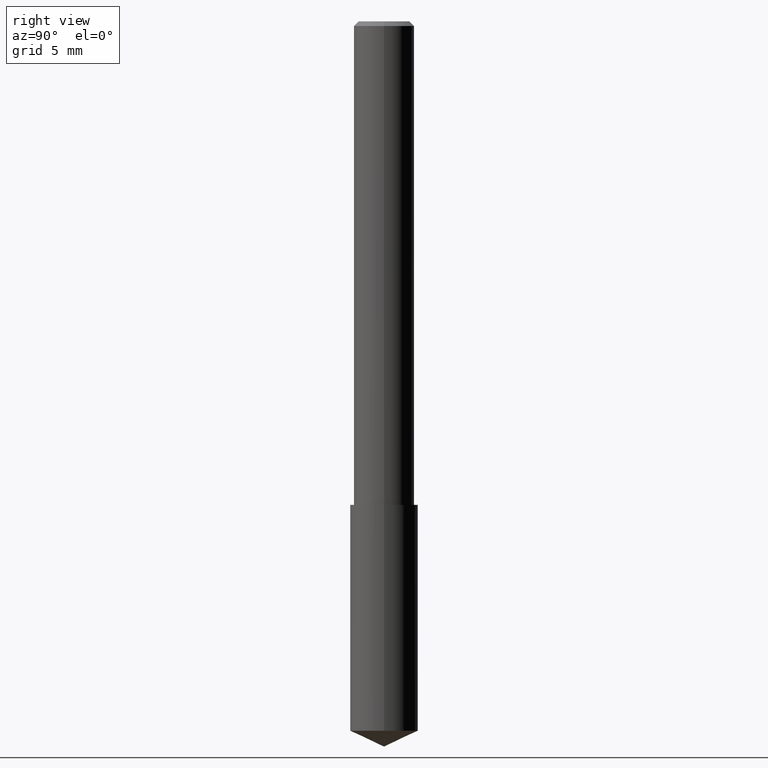
[diagram: clean part render]
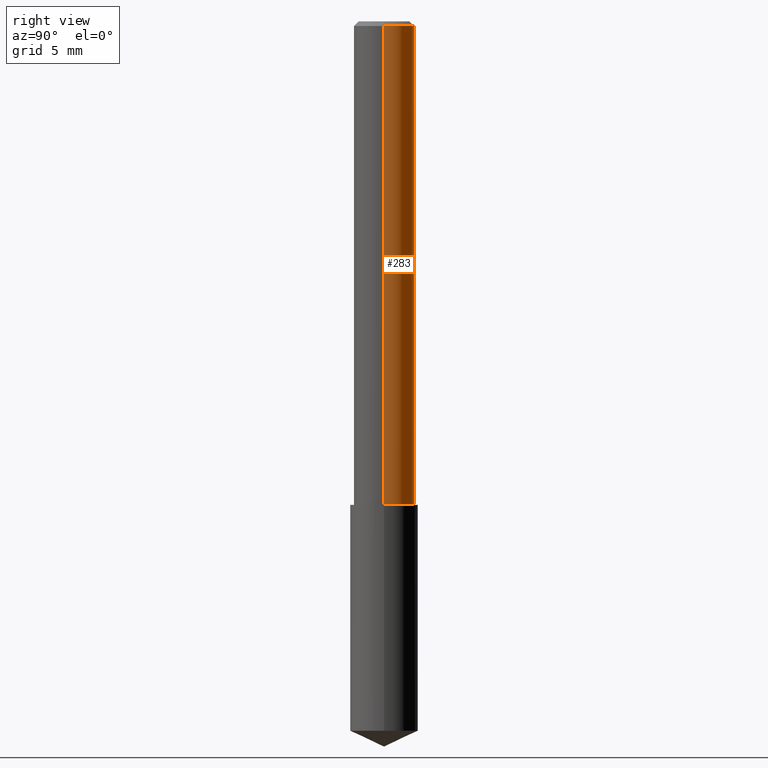
[diagram: same view with one face highlighted and labeled with its STEP entity id]
A machine part, right view. The second image highlights one B-rep face of the part: STEP entity #283.
In plain terms, the highlighted cylindrical surface (edge-blend (fillet) strip) has radius 1.5875 mm, axis along (-0, 0, 1).
Its self-contained STEP definition (entity closure, byte-faithful):
#1 = FACE_OUTER_BOUND ( 'NONE', #164, .T. ) ;
#5 = CYLINDRICAL_SURFACE ( 'NONE', #198, 0.06250000000000006939 ) ;
#7 = DIRECTION ( 'NONE',  ( -2.445468806185136877E-29, 3.491481338843145188E-15, 1.000000000000000000 ) ) ;
#8 = VERTEX_POINT ( 'NONE', #278 ) ;
#10 = VERTEX_POINT ( 'NONE', #34 ) ;
#25 = DIRECTION ( 'NONE',  ( -2.445468806185136597E-29, 3.491481338843145583E-15, 1.000000000000000000 ) ) ;
#32 = LINE ( 'NONE', #339, #288 ) ;
#34 = CARTESIAN_POINT ( 'NONE',  ( 0.06250000000000012490, -3.927916506198539224E-15, -1.000000000000000222 ) ) ;
#57 = CIRCLE ( 'NONE', #97, 0.06250000000000012490 ) ;
#58 = DIRECTION ( 'NONE',  ( -2.445468806185136597E-29, 3.491481338843145583E-15, 1.000000000000000000 ) ) ;
#75 = CARTESIAN_POINT ( 'NONE',  ( 2.292627005798582375E-31, -3.273263755165473266E-17, -0.009375000000000069042 ) ) ;
#97 = AXIS2_PLACEMENT_3D ( 'NONE', #286, #25, #131 ) ;
#100 = EDGE_CURVE ( 'NONE', #10, #322, #158, .T. ) ;
#101 = CARTESIAN_POINT ( 'NONE',  ( 0.06250000000000000000, -4.691678049070464390E-16, -0.009375000000000069042 ) ) ;
#103 = CIRCLE ( 'NONE', #333, 0.06250000000000000000 ) ;
#122 = ORIENTED_EDGE ( 'NONE', *, *, #100, .F. ) ;
#130 = CARTESIAN_POINT ( 'NONE',  ( 0.06250000000000006939, -4.364351673553921624E-16, 3.047610484872463374E-30 ) ) ;
#131 = DIRECTION ( 'NONE',  ( 1.000000000000000000, -6.982962677686264344E-15, 0.000000000000000000 ) ) ;
#158 = LINE ( 'NONE', #130, #173 ) ;
#162 = DIRECTION ( 'NONE',  ( 1.000000000000000000, -6.982962677686266711E-15, 4.876176775795935793E-29 ) ) ;
#164 = EDGE_LOOP ( 'NONE', ( #242, #320, #293, #122 ) ) ;
#167 = EDGE_CURVE ( 'NONE', #10, #8, #57, .T. ) ;
#173 = VECTOR ( 'NONE', #177, 39.37007874015748143 ) ;
#177 = DIRECTION ( 'NONE',  ( -2.445468806185136877E-29, 3.491481338843145188E-15, 1.000000000000000000 ) ) ;
#183 = DIRECTION ( 'NONE',  ( -2.445468806185136597E-29, 3.491481338843145583E-15, 1.000000000000000000 ) ) ;
#194 = EDGE_CURVE ( 'NONE', #322, #325, #103, .T. ) ;
#198 = AXIS2_PLACEMENT_3D ( 'NONE', #295, #58, #162 ) ;
#204 = EDGE_CURVE ( 'NONE', #8, #325, #32, .T. ) ;
#237 = DIRECTION ( 'NONE',  ( 1.000000000000000000, -6.982962677686266711E-15, 0.000000000000000000 ) ) ;
#242 = ORIENTED_EDGE ( 'NONE', *, *, #167, .T. ) ;
#278 = CARTESIAN_POINT ( 'NONE',  ( -0.06250000000000012490, -1.318017778347335489E-15, -1.000000000000000222 ) ) ;
#283 = ADVANCED_FACE ( 'NONE', ( #1 ), #5, .T. ) ;
#286 = CARTESIAN_POINT ( 'NONE',  ( 2.445468806185137438E-29, -3.491481338843146371E-15, -1.000000000000000222 ) ) ;
#288 = VECTOR ( 'NONE', #7, 39.37007874015748143 ) ;
#293 = ORIENTED_EDGE ( 'NONE', *, *, #194, .F. ) ;
#295 = CARTESIAN_POINT ( 'NONE',  ( 0.000000000000000000, 0.000000000000000000, 0.000000000000000000 ) ) ;
#305 = CARTESIAN_POINT ( 'NONE',  ( -0.06250000000000000000, -1.318017778347336672E-15, -0.009375000000000069042 ) ) ;
#320 = ORIENTED_EDGE ( 'NONE', *, *, #204, .T. ) ;
#322 = VERTEX_POINT ( 'NONE', #101 ) ;
#325 = VERTEX_POINT ( 'NONE', #305 ) ;
#333 = AXIS2_PLACEMENT_3D ( 'NONE', #75, #183, #237 ) ;
#339 = CARTESIAN_POINT ( 'NONE',  ( -0.06250000000000006939, 4.440892098500631092E-16, -3.074334431409319267E-30 ) ) ;